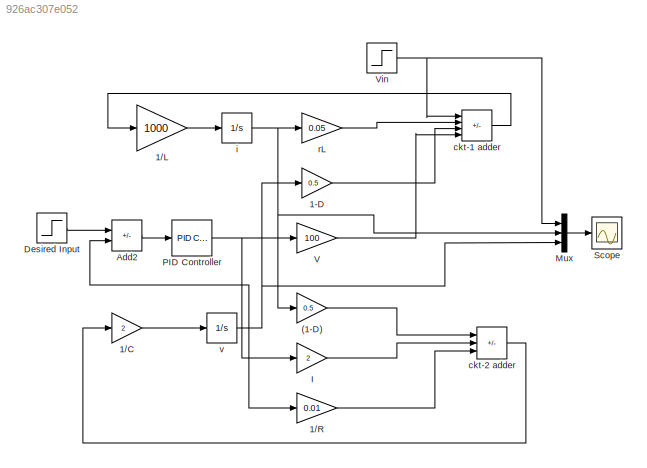
MODEL slx_926ac307e052
KIND model
CONFIG AbsTol = auto
CONFIG EnableMultiTasking = off
CONFIG FixedStep = auto
CONFIG MaxStep = auto
CONFIG MinStep = auto
CONFIG RelTol = 1e-3
CONFIG SampleTimeConstraint = Unconstrained
CONFIG SolverName = VariableStepAuto
CONFIG StartTime = 0.0
CONFIG StopTime = 10.0
BLOCK [Gain] (1-D)
  Gain = 0.5
BLOCK [Gain] 1-D
  Gain = 0.5
BLOCK [Gain] 1//C
  Gain = 2
BLOCK [Gain] 1//L
  Gain = 1000
BLOCK [Gain] 1//R
  Gain = 0.01
BLOCK [Sum] Add2
  IconShape = rectangular
  Inputs = +-
BLOCK [Step] Desired Input
  SampleTime = 0
BLOCK [Gain] I
  Gain = 2
BLOCK [Mux] Mux
  DisplayOption = bar
  Inputs = 3
BLOCK [Reference] PID Controller  REF=slpidlib/PID Controller
  LibrarySourceBlock = simulink/Continuous/PID Controller
  SourceBlock = slpidlib/PID Controller
  SourceType = PID 1dof
BLOCK [Scope] Scope
  Floating = off
  NumInputPorts = 1
  ScopeSpecificationString = Simulink.scopes.TimeScopeBlockCfg('CurrentConfiguration', extmgr.ConfigurationSet(extmgr.Configuration('Core','General UI',true),extmgr.Configuration('Core','Source UI',true),extmgr.Configuration('Sources','WiredSimulink',true),extmgr.Configuration('Visuals','Time Domain',true,'SerializedDisplays',{struct('MinYLimReal','-290.19567','MaxYLimReal','329.31913','YLabelReal','','MinYLimMag',' 0.00000',...<+1489ch>
BLOCK [Gain] V
  Gain = 100
BLOCK [Step] Vin
  SampleTime = 0
BLOCK [Sum] ckt-1 adder
  IconShape = rectangular
  Inputs = +--+
BLOCK [Sum] ckt-2 adder
  IconShape = rectangular
  Inputs = +--
BLOCK [Integrator] i
BLOCK [Gain] rL
  Gain = 0.05
BLOCK [Integrator] v
LINE (1-D):1 -> ckt-2 adder:1
LINE 1-D:1 -> ckt-1 adder:3
LINE 1//C:1 -> v:1
LINE 1//L:1 -> i:1
LINE 1//R:1 -> ckt-2 adder:3
LINE Add2:1 -> PID Controller:1
LINE Desired Input:1 -> Add2:1
LINE I:1 -> ckt-2 adder:2
LINE Mux:1 -> Scope:1
NET PID Controller:1 -> I:1, V:1
LINE V:1 -> ckt-1 adder:4
NET Vin:1 -> Mux:1, ckt-1 adder:1
LINE ckt-1 adder:1 -> 1//L:1
LINE ckt-2 adder:1 -> 1//C:1
NET i:1 -> (1-D):1, Mux:2, rL:1
LINE rL:1 -> ckt-1 adder:2
NET v:1 -> 1-D:1, 1//R:1, Add2:2, Mux:3
note: NET lines group one-source signal fan-out (src -> all destinations, sorted); 1:1 wires keep LINE
